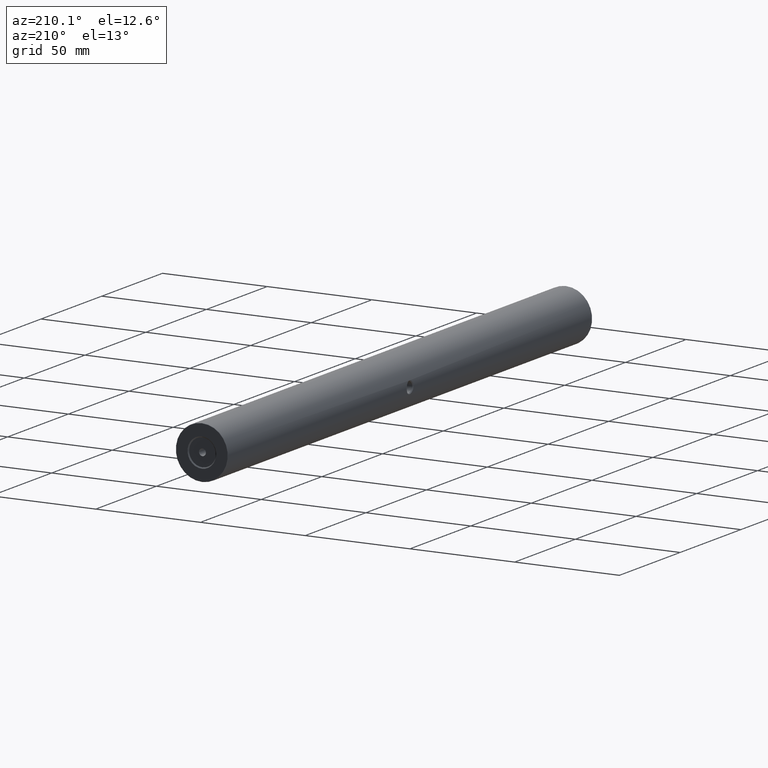
[diagram: clean part render]
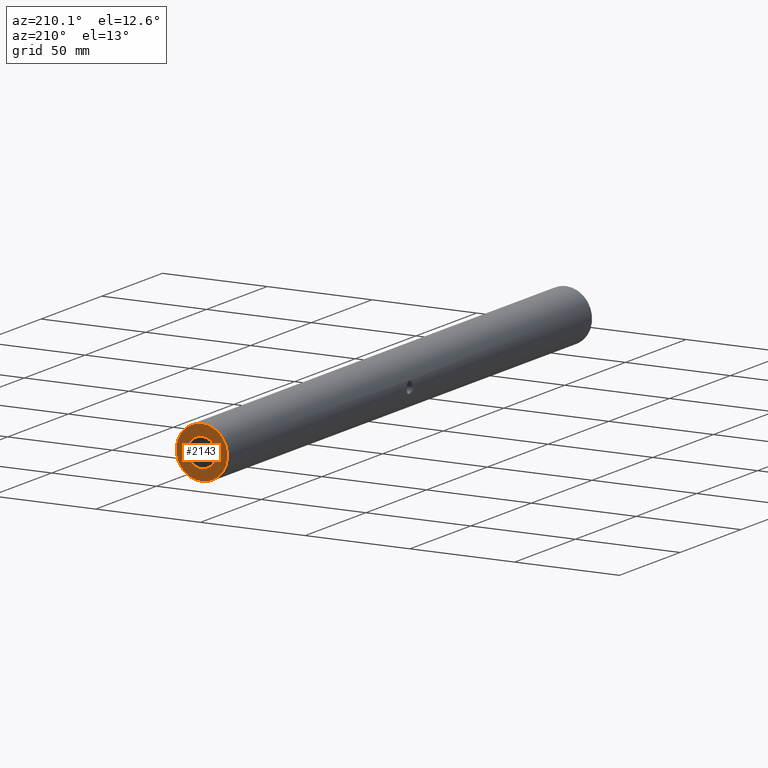
[diagram: same view with one face highlighted and labeled with its STEP entity id]
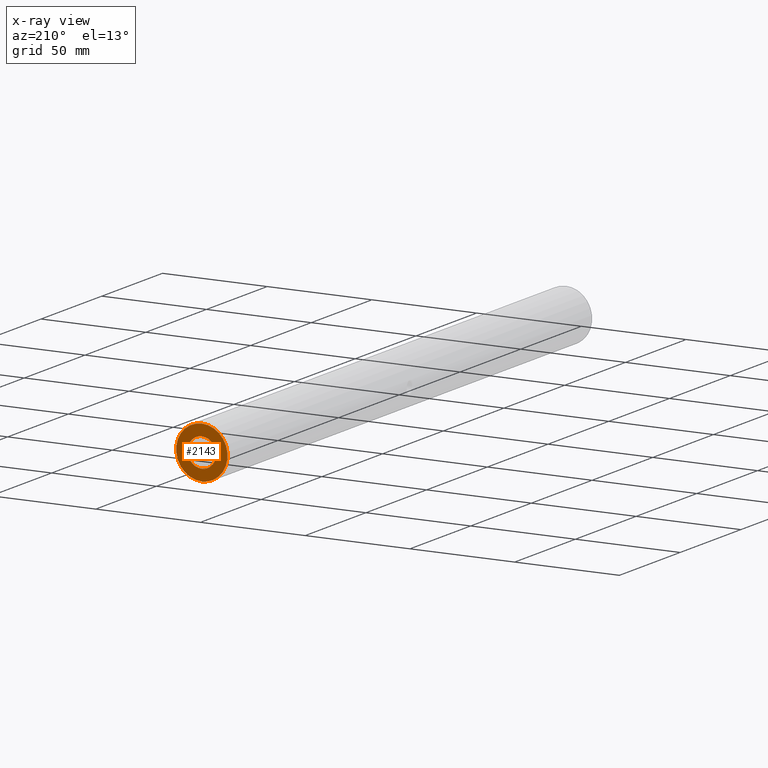
[diagram: x-ray of the same camera — body ghosted, the highlighted face saturated]
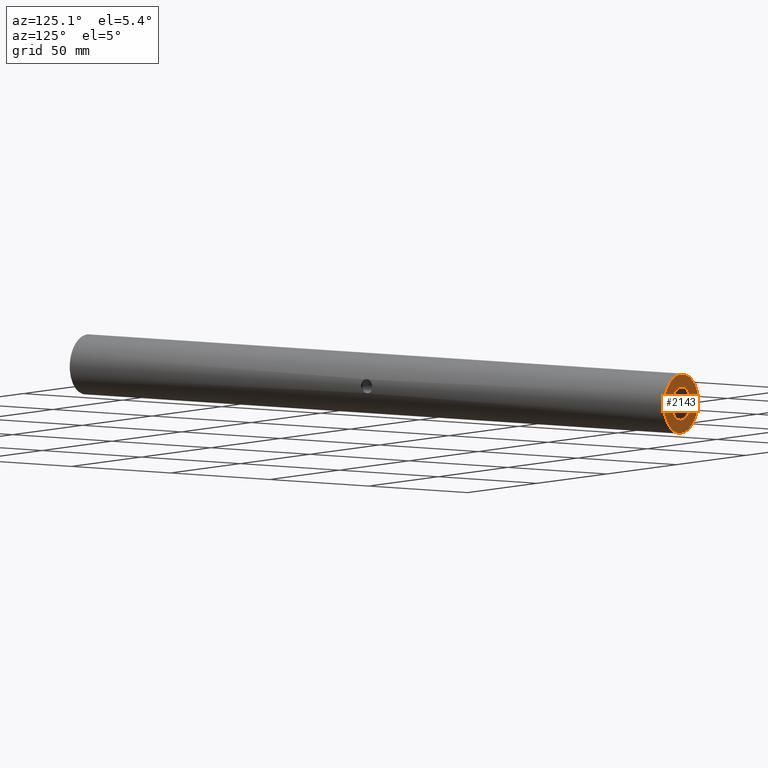
[diagram: same view with one face highlighted and labeled with its STEP entity id]
A machine part, auxiliary view. The second image highlights one B-rep face of the part: STEP entity #2143.
The next image is the same camera in x-ray: the body ghosted, the highlighted face saturated — about 0% of this face is hidden behind the body in this view.
A second angle (auxiliary view) of the same face is appended — the face is thin or edge-on in the first view.
In plain terms, the highlighted planar face has unit normal (0, 1, 0).
Its self-contained STEP definition (entity closure, byte-faithful):
#21 = EDGE_CURVE ( 'NONE', #2194, #834, #1848, .T. ) ;
#250 = CARTESIAN_POINT ( 'NONE',  ( -22.50520183104453409, 151.3982521847693761, 43.15000000000000568 ) ) ;
#316 = DIRECTION ( 'NONE',  ( -0.0000000000000000000, -1.000000000000000000, -0.0000000000000000000 ) ) ;
#332 = DIRECTION ( 'NONE',  ( 0.0000000000000000000, 1.000000000000000000, 0.0000000000000000000 ) ) ;
#336 = EDGE_CURVE ( 'NONE', #2239, #911, #889, .T. ) ;
#610 = AXIS2_PLACEMENT_3D ( 'NONE', #654, #1717, #2786 ) ;
#621 = AXIS2_PLACEMENT_3D ( 'NONE', #3241, #332, #1693 ) ;
#654 = CARTESIAN_POINT ( 'NONE',  ( -22.50520183104453409, 151.3982521847693761, 50.00000000000000000 ) ) ;
#791 = DIRECTION ( 'NONE',  ( 0.0000000000000000000, 0.0000000000000000000, 1.000000000000000000 ) ) ;
#834 = VERTEX_POINT ( 'NONE', #2777 ) ;
#889 = CIRCLE ( 'NONE', #2461, 6.849999999999995204 ) ;
#890 = PLANE ( 'NONE',  #621 ) ;
#911 = VERTEX_POINT ( 'NONE', #250 ) ;
#1077 = CARTESIAN_POINT ( 'NONE',  ( -22.50520183104453409, 151.3982521847693761, 50.00000000000000000 ) ) ;
#1233 = ORIENTED_EDGE ( 'NONE', *, *, #21, .T. ) ;
#1256 = CIRCLE ( 'NONE', #2309, 12.24999999999999645 ) ;
#1410 = EDGE_CURVE ( 'NONE', #911, #2239, #1644, .T. ) ;
#1416 = ORIENTED_EDGE ( 'NONE', *, *, #3126, .T. ) ;
#1634 = EDGE_LOOP ( 'NONE', ( #1416, #1233 ) ) ;
#1644 = CIRCLE ( 'NONE', #1818, 6.849999999999995204 ) ;
#1693 = DIRECTION ( 'NONE',  ( 0.0000000000000000000, -0.0000000000000000000, 1.000000000000000000 ) ) ;
#1717 = DIRECTION ( 'NONE',  ( 0.0000000000000000000, 1.000000000000000000, 0.0000000000000000000 ) ) ;
#1818 = AXIS2_PLACEMENT_3D ( 'NONE', #1077, #316, #791 ) ;
#1848 = CIRCLE ( 'NONE', #610, 12.24999999999999645 ) ;
#2083 = CARTESIAN_POINT ( 'NONE',  ( -22.50520183104453409, 151.3982521847693761, 37.75000000000000711 ) ) ;
#2112 = CARTESIAN_POINT ( 'NONE',  ( -22.50520183104453409, 151.3982521847693761, 50.00000000000000000 ) ) ;
#2128 = DIRECTION ( 'NONE',  ( 0.0000000000000000000, 1.000000000000000000, 0.0000000000000000000 ) ) ;
#2143 = ADVANCED_FACE ( 'NONE', ( #3256, #2776 ), #890, .T. ) ;
#2194 = VERTEX_POINT ( 'NONE', #2083 ) ;
#2239 = VERTEX_POINT ( 'NONE', #3358 ) ;
#2309 = AXIS2_PLACEMENT_3D ( 'NONE', #2112, #2128, #3178 ) ;
#2443 = ORIENTED_EDGE ( 'NONE', *, *, #1410, .T. ) ;
#2461 = AXIS2_PLACEMENT_3D ( 'NONE', #2737, #2477, #2998 ) ;
#2477 = DIRECTION ( 'NONE',  ( -0.0000000000000000000, -1.000000000000000000, -0.0000000000000000000 ) ) ;
#2737 = CARTESIAN_POINT ( 'NONE',  ( -22.50520183104453409, 151.3982521847693761, 50.00000000000000000 ) ) ;
#2776 = FACE_BOUND ( 'NONE', #3059, .T. ) ;
#2777 = CARTESIAN_POINT ( 'NONE',  ( -22.50520183104453409, 151.3982521847693761, 62.25000000000000000 ) ) ;
#2786 = DIRECTION ( 'NONE',  ( 0.0000000000000000000, 0.0000000000000000000, 1.000000000000000000 ) ) ;
#2998 = DIRECTION ( 'NONE',  ( 0.0000000000000000000, 0.0000000000000000000, 1.000000000000000000 ) ) ;
#3059 = EDGE_LOOP ( 'NONE', ( #3065, #2443 ) ) ;
#3065 = ORIENTED_EDGE ( 'NONE', *, *, #336, .T. ) ;
#3126 = EDGE_CURVE ( 'NONE', #834, #2194, #1256, .T. ) ;
#3178 = DIRECTION ( 'NONE',  ( 0.0000000000000000000, 0.0000000000000000000, 1.000000000000000000 ) ) ;
#3241 = CARTESIAN_POINT ( 'NONE',  ( -22.50520183104453409, 151.3982521847693761, 50.00000000000000000 ) ) ;
#3256 = FACE_OUTER_BOUND ( 'NONE', #1634, .T. ) ;
#3358 = CARTESIAN_POINT ( 'NONE',  ( -22.50520183104453409, 151.3982521847693761, 56.84999999999999432 ) ) ;